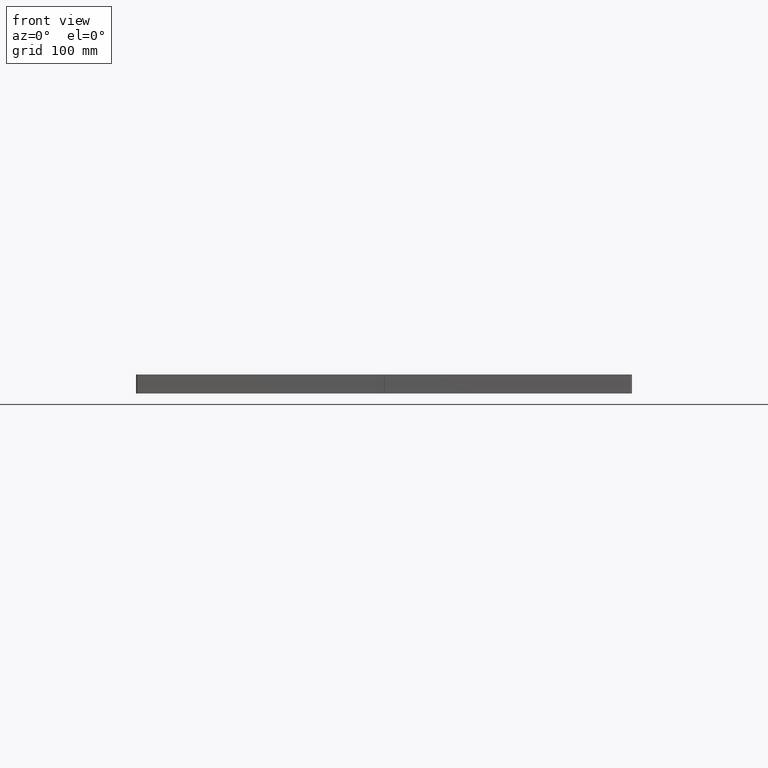
[diagram: clean part render]
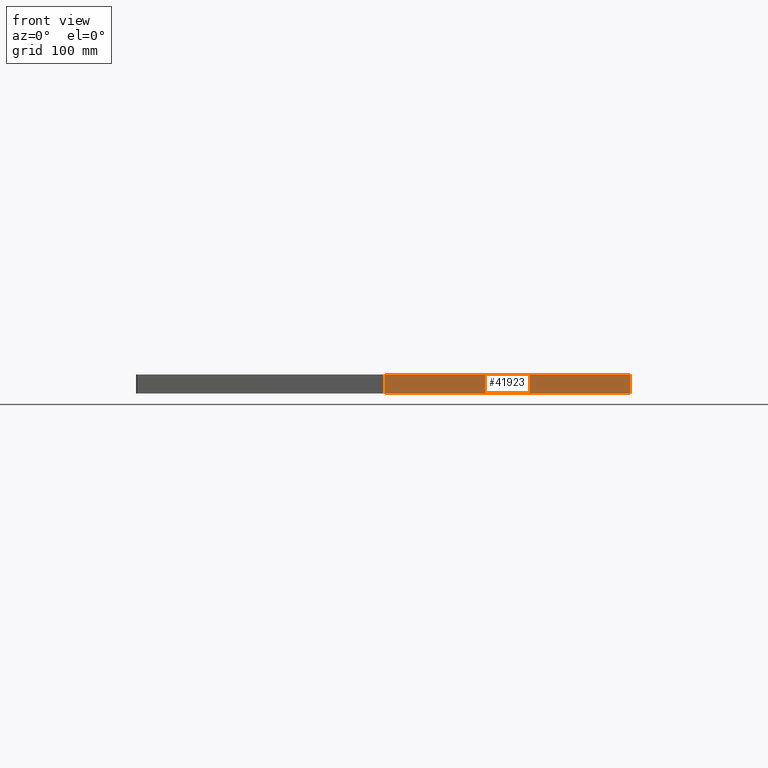
[diagram: same view with one face highlighted and labeled with its STEP entity id]
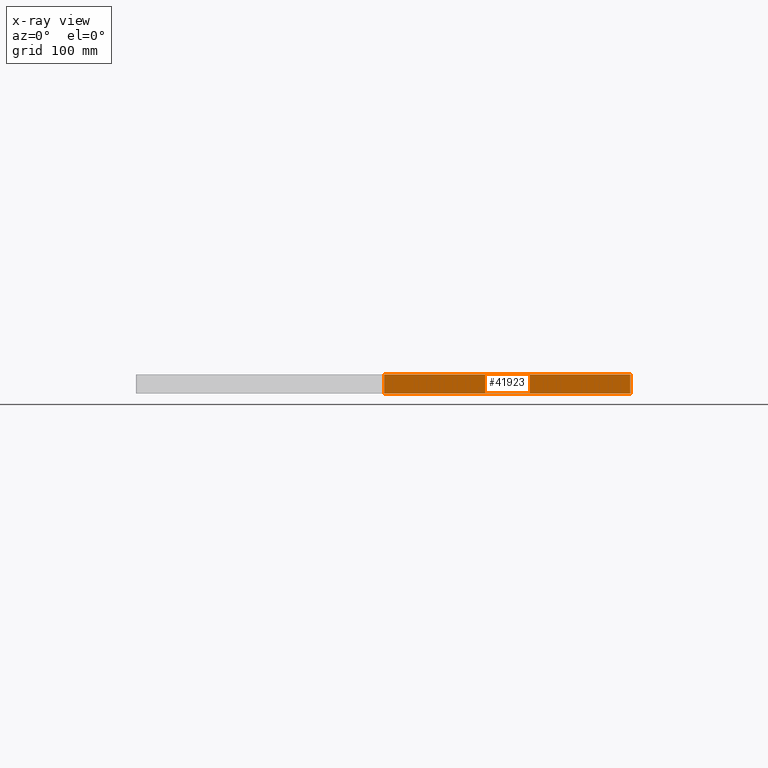
[diagram: x-ray of the same camera — body ghosted, the highlighted face saturated]
A machine part, front view. The second image highlights one B-rep face of the part: STEP entity #41923.
The next image is the same camera in x-ray: the body ghosted, the highlighted face saturated — about 0% of this face is hidden behind the body in this view.
In plain terms, the highlighted planar face has unit normal (0, -1, 0).
Its self-contained STEP definition (entity closure, byte-faithful):
#1924=LINE('',#75894,#3649);
#1989=LINE('',#76879,#3714);
#1994=LINE('',#77595,#3719);
#2000=LINE('',#77607,#3725);
#3649=VECTOR('',#55480,0.393700787401575);
#3714=VECTOR('',#56539,0.393700787401575);
#3719=VECTOR('',#57258,0.393700787401575);
#3725=VECTOR('',#57276,0.393700787401575);
#9821=FACE_OUTER_BOUND('',#14298,.T.);
#14298=EDGE_LOOP('',(#36086,#36087,#36088,#36089));
#21196=VERTEX_POINT('',#75891);
#21197=VERTEX_POINT('',#75893);
#21619=VERTEX_POINT('',#76876);
#21620=VERTEX_POINT('',#76878);
#26047=EDGE_CURVE('',#21196,#21197,#1924,.T.);
#26538=EDGE_CURVE('',#21620,#21619,#1989,.T.);
#26897=EDGE_CURVE('',#21620,#21196,#1994,.T.);
#26903=EDGE_CURVE('',#21197,#21619,#2000,.T.);
#36086=ORIENTED_EDGE('',*,*,#26897,.F.);
#36087=ORIENTED_EDGE('',*,*,#26538,.T.);
#36088=ORIENTED_EDGE('',*,*,#26903,.F.);
#36089=ORIENTED_EDGE('',*,*,#26047,.F.);
#40004=PLANE('',#46830);
#41923=ADVANCED_FACE('',(#9821),#40004,.T.);
#46830=AXIS2_PLACEMENT_3D('',#77635,#57315,#57316);
#55480=DIRECTION('',(-1.,0.,0.));
#56539=DIRECTION('',(-1.,0.,0.));
#57258=DIRECTION('',(0.,0.,1.));
#57276=DIRECTION('',(0.,0.,-1.));
#57315=DIRECTION('center_axis',(0.,1.,0.));
#57316=DIRECTION('ref_axis',(-1.,0.,0.));
#75891=CARTESIAN_POINT('',(-0.0240710678118651,13.,0.92));
#75893=CARTESIAN_POINT('',(-11.9167157287525,13.,0.92));
#75894=CARTESIAN_POINT('',(0.,13.,0.92));
#76876=CARTESIAN_POINT('',(-11.9167157287525,13.,0.));
#76878=CARTESIAN_POINT('',(-0.0240710678118651,13.,0.));
#76879=CARTESIAN_POINT('',(0.,13.,0.));
#77595=CARTESIAN_POINT('',(-0.0240710678118651,13.,0.));
#77607=CARTESIAN_POINT('',(-11.9167157287525,13.,0.));
#77635=CARTESIAN_POINT('Origin',(0.,13.,0.));